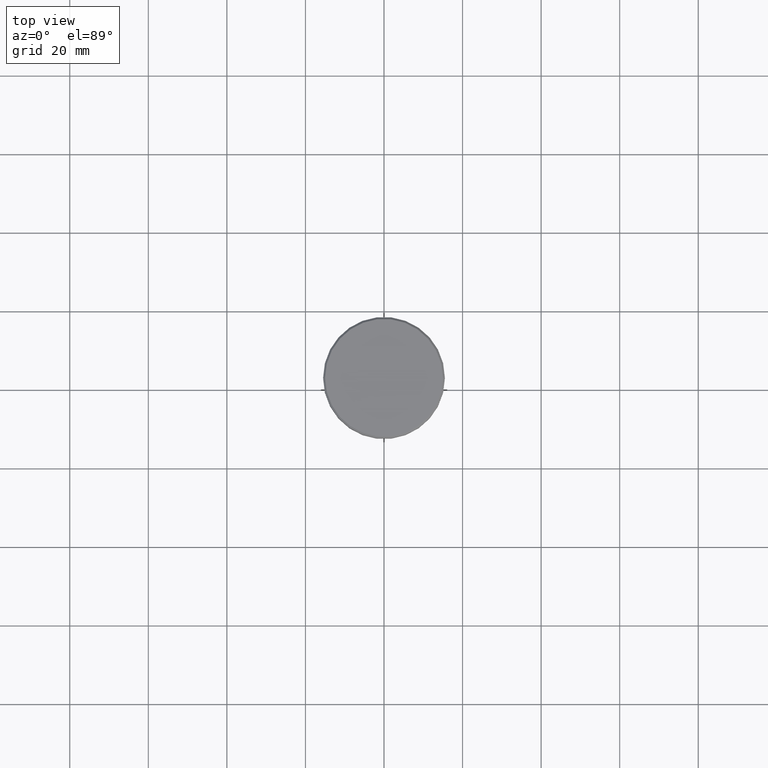
[diagram: clean part render]
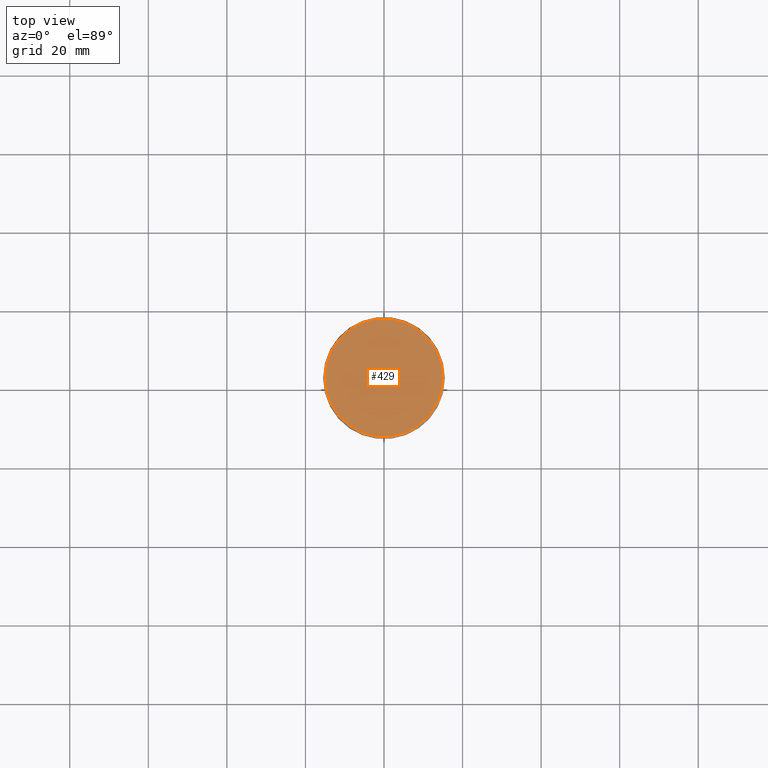
[diagram: same view with one face highlighted and labeled with its STEP entity id]
A machine part, top view. The second image highlights one B-rep face of the part: STEP entity #429.
In plain terms, the highlighted planar face has unit normal (0, -0, 1).
Its self-contained STEP definition (entity closure, byte-faithful):
#15 = DIRECTION ( 'NONE',  ( -0.000000000000000000, -0.000000000000000000, 1.000000000000000000 ) ) ;
#149 = ORIENTED_EDGE ( 'NONE', *, *, #754, .T. ) ;
#154 = CARTESIAN_POINT ( 'NONE',  ( 0.000000000000000000, 0.000000000000000000, 0.000000000000000000 ) ) ;
#160 = DIRECTION ( 'NONE',  ( -0.000000000000000000, -0.000000000000000000, 1.000000000000000000 ) ) ;
#184 = AXIS2_PLACEMENT_3D ( 'NONE', #652, #15, #641 ) ;
#264 = VERTEX_POINT ( 'NONE', #578 ) ;
#267 = ORIENTED_EDGE ( 'NONE', *, *, #540, .T. ) ;
#429 = ADVANCED_FACE ( 'NONE', ( #991 ), #538, .T. ) ;
#439 = DIRECTION ( 'NONE',  ( 1.000000000000000000, 0.000000000000000000, 0.000000000000000000 ) ) ;
#538 = PLANE ( 'NONE',  #729 ) ;
#540 = EDGE_CURVE ( 'NONE', #264, #1001, #579, .T. ) ;
#570 = DIRECTION ( 'NONE',  ( 1.000000000000000000, 0.000000000000000000, 0.000000000000000000 ) ) ;
#578 = CARTESIAN_POINT ( 'NONE',  ( -14.99999999999995737, 0.000000000000000000, 0.000000000000000000 ) ) ;
#579 = CIRCLE ( 'NONE', #184, 14.99999999999995737 ) ;
#598 = EDGE_LOOP ( 'NONE', ( #267, #149 ) ) ;
#624 = DIRECTION ( 'NONE',  ( 0.000000000000000000, -0.000000000000000000, 1.000000000000000000 ) ) ;
#641 = DIRECTION ( 'NONE',  ( 1.000000000000000000, 0.000000000000000000, 0.000000000000000000 ) ) ;
#652 = CARTESIAN_POINT ( 'NONE',  ( 0.000000000000000000, 0.000000000000000000, 0.000000000000000000 ) ) ;
#727 = CARTESIAN_POINT ( 'NONE',  ( 14.99999999999995737, 1.867586368699711009E-15, 0.000000000000000000 ) ) ;
#729 = AXIS2_PLACEMENT_3D ( 'NONE', #980, #624, #570 ) ;
#754 = EDGE_CURVE ( 'NONE', #1001, #264, #906, .T. ) ;
#906 = CIRCLE ( 'NONE', #1135, 14.99999999999995737 ) ;
#980 = CARTESIAN_POINT ( 'NONE',  ( 0.000000000000000000, 0.000000000000000000, 0.000000000000000000 ) ) ;
#991 = FACE_OUTER_BOUND ( 'NONE', #598, .T. ) ;
#1001 = VERTEX_POINT ( 'NONE', #727 ) ;
#1135 = AXIS2_PLACEMENT_3D ( 'NONE', #154, #160, #439 ) ;